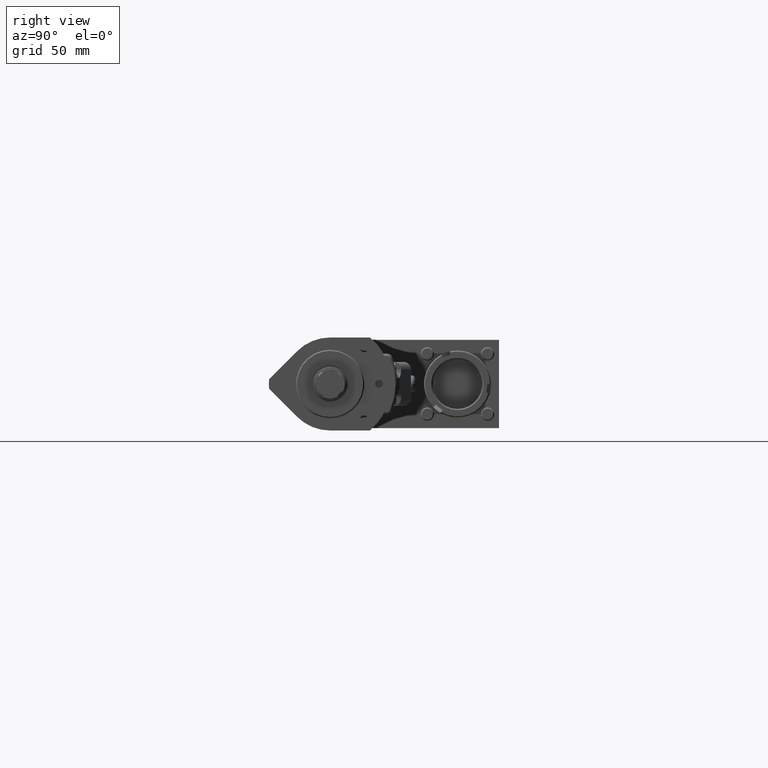
[diagram: clean part render]
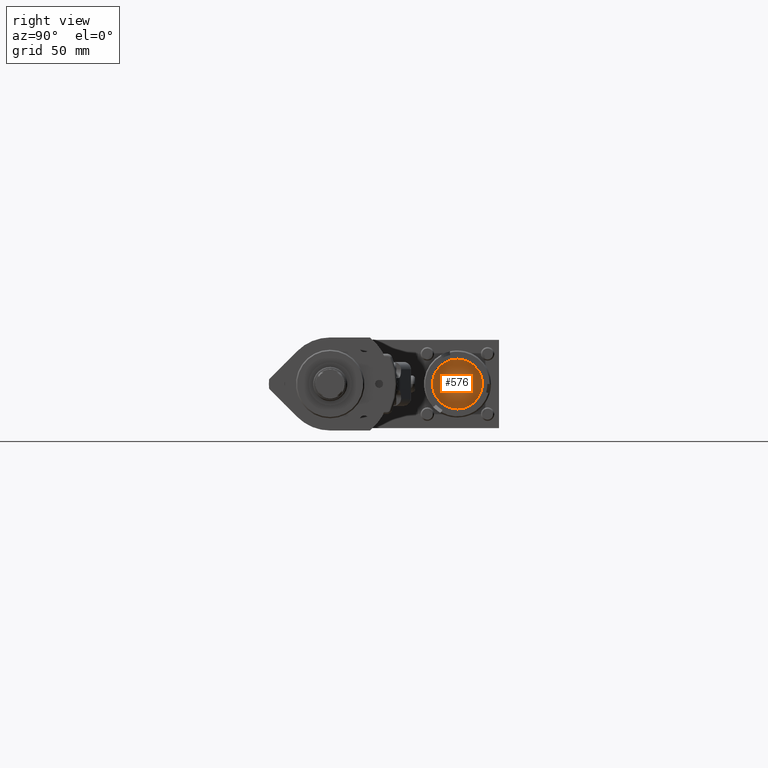
[diagram: same view with one face highlighted and labeled with its STEP entity id]
A machine part, right view. The second image highlights one B-rep face of the part: STEP entity #576.
In plain terms, the highlighted planar face has unit normal (1, -0, 0).
Its self-contained STEP definition (entity closure, byte-faithful):
#40 = VERTEX_POINT ( 'NONE', #3425 ) ;
#576 = ADVANCED_FACE ( 'NONE', ( #1813 ), #4266, .T. ) ;
#1125 = EDGE_LOOP ( 'NONE', ( #9710, #6530 ) ) ;
#1813 = FACE_OUTER_BOUND ( 'NONE', #1125, .T. ) ;
#1895 = CIRCLE ( 'NONE', #4012, 10.20000000000000100 ) ;
#1946 = CARTESIAN_POINT ( 'NONE',  ( -236.8000000000000100, 0.0000000000000000000, 0.0000000000000000000 ) ) ;
#2204 = AXIS2_PLACEMENT_3D ( 'NONE', #6735, #14727, #7879 ) ;
#2680 = DIRECTION ( 'NONE',  ( -1.000000000000000000, -0.0000000000000000000, -0.0000000000000000000 ) ) ;
#3425 = CARTESIAN_POINT ( 'NONE',  ( -236.8000000000000100, 52.00000000000000000, -10.20000000000000100 ) ) ;
#4012 = AXIS2_PLACEMENT_3D ( 'NONE', #9536, #2680, #10666 ) ;
#4266 = PLANE ( 'NONE',  #11415 ) ;
#5459 = DIRECTION ( 'NONE',  ( 0.0000000000000000000, 0.0000000000000000000, -1.000000000000000000 ) ) ;
#6530 = ORIENTED_EDGE ( 'NONE', *, *, #12387, .F. ) ;
#6735 = CARTESIAN_POINT ( 'NONE',  ( -236.8000000000000100, 52.00000000000000000, 0.0000000000000000000 ) ) ;
#6850 = VERTEX_POINT ( 'NONE', #13336 ) ;
#6963 = CIRCLE ( 'NONE', #2204, 10.20000000000000100 ) ;
#7758 = EDGE_CURVE ( 'NONE', #6850, #40, #6963, .T. ) ;
#7879 = DIRECTION ( 'NONE',  ( 0.0000000000000000000, 0.0000000000000000000, 1.000000000000000000 ) ) ;
#9536 = CARTESIAN_POINT ( 'NONE',  ( -236.8000000000000100, 52.00000000000000000, 0.0000000000000000000 ) ) ;
#9710 = ORIENTED_EDGE ( 'NONE', *, *, #7758, .F. ) ;
#10666 = DIRECTION ( 'NONE',  ( 0.0000000000000000000, 0.0000000000000000000, 1.000000000000000000 ) ) ;
#11415 = AXIS2_PLACEMENT_3D ( 'NONE', #1946, #12295, #5459 ) ;
#12295 = DIRECTION ( 'NONE',  ( 1.000000000000000000, -0.0000000000000000000, 0.0000000000000000000 ) ) ;
#12387 = EDGE_CURVE ( 'NONE', #40, #6850, #1895, .T. ) ;
#13336 = CARTESIAN_POINT ( 'NONE',  ( -236.8000000000000100, 52.00000000000000000, 10.20000000000000100 ) ) ;
#14727 = DIRECTION ( 'NONE',  ( -1.000000000000000000, -0.0000000000000000000, -0.0000000000000000000 ) ) ;